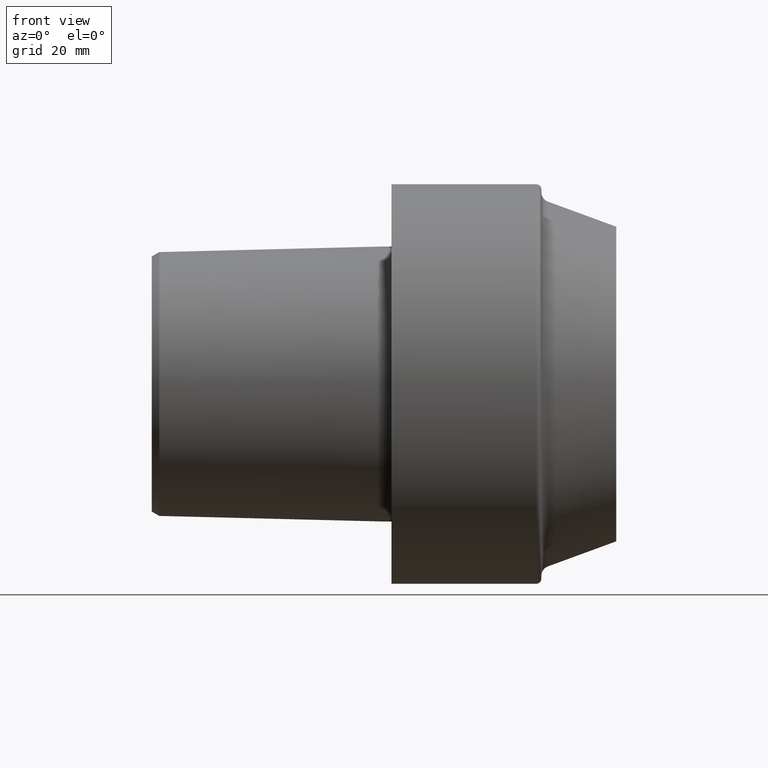
[diagram: clean part render]
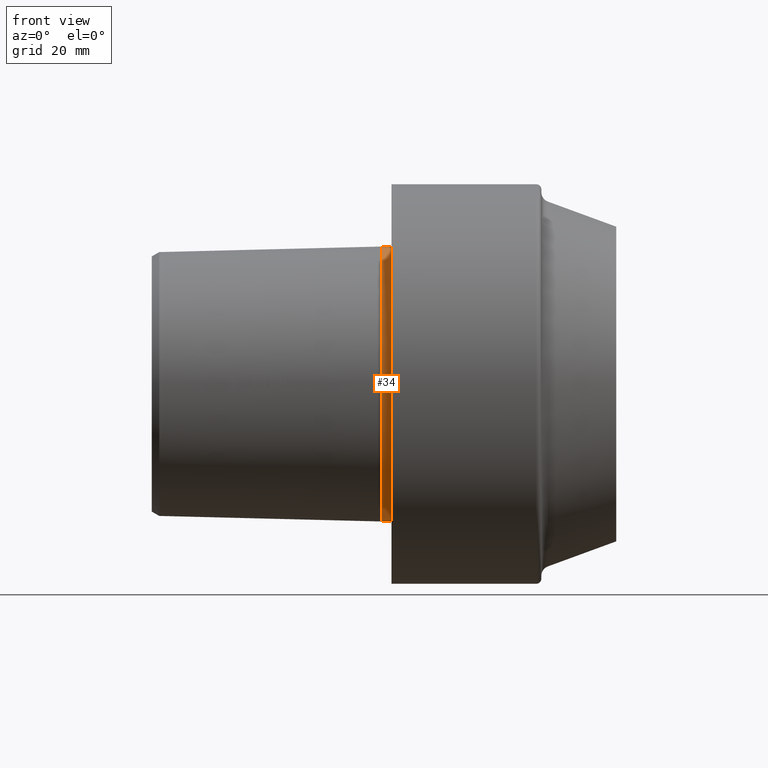
[diagram: same view with one face highlighted and labeled with its STEP entity id]
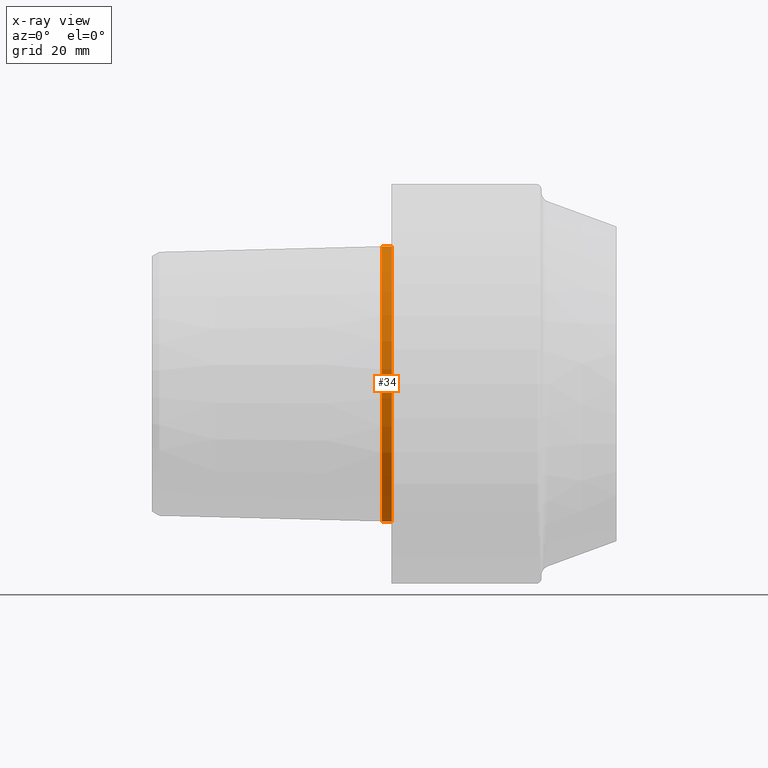
[diagram: x-ray of the same camera — body ghosted, the highlighted face saturated]
A machine part, front view. The second image highlights one B-rep face of the part: STEP entity #34.
The next image is the same camera in x-ray: the body ghosted, the highlighted face saturated — about 0% of this face is hidden behind the body in this view.
In plain terms, the highlighted cylindrical surface (partial cylindrical patch) has radius 27.5265 mm, axis along (-1, 0, 0).
Its self-contained STEP definition (entity closure, byte-faithful):
#4 = VECTOR ( 'NONE', #342, 1000.000000000000000 ) ;
#13 = VERTEX_POINT ( 'NONE', #325 ) ;
#34 = ADVANCED_FACE ( 'NONE', ( #375 ), #241, .T. ) ;
#83 = VECTOR ( 'NONE', #493, 1000.000000000000000 ) ;
#97 = ORIENTED_EDGE ( 'NONE', *, *, #396, .T. ) ;
#107 = CARTESIAN_POINT ( 'NONE',  ( -47.99999995507708661, 0.000000000000000000, 27.52650806658465399 ) ) ;
#174 = AXIS2_PLACEMENT_3D ( 'NONE', #488, #191, #358 ) ;
#179 = ORIENTED_EDGE ( 'NONE', *, *, #194, .F. ) ;
#180 = LINE ( 'NONE', #395, #4 ) ;
#191 = DIRECTION ( 'NONE',  ( -1.000000000000000000, 0.000000000000000000, 0.000000000000000000 ) ) ;
#194 = EDGE_CURVE ( 'NONE', #347, #353, #180, .T. ) ;
#202 = CARTESIAN_POINT ( 'NONE',  ( 2.691416640612785863E-09, 0.000000000000000000, 27.52650806658465399 ) ) ;
#226 = ORIENTED_EDGE ( 'NONE', *, *, #448, .T. ) ;
#237 = CARTESIAN_POINT ( 'NONE',  ( -47.99999995507708661, 0.000000000000000000, 0.000000000000000000 ) ) ;
#241 = CYLINDRICAL_SURFACE ( 'NONE', #334, 27.52650806658465399 ) ;
#312 = ORIENTED_EDGE ( 'NONE', *, *, #354, .F. ) ;
#317 = CARTESIAN_POINT ( 'NONE',  ( 2.691416640612785863E-09, 3.371024999544667893E-15, -27.52650806658465399 ) ) ;
#325 = CARTESIAN_POINT ( 'NONE',  ( -1.940694415329066391, 0.000000000000000000, 27.52650806658465399 ) ) ;
#334 = AXIS2_PLACEMENT_3D ( 'NONE', #237, #420, #538 ) ;
#342 = DIRECTION ( 'NONE',  ( -1.000000000000000000, 0.000000000000000000, 0.000000000000000000 ) ) ;
#347 = VERTEX_POINT ( 'NONE', #317 ) ;
#349 = VERTEX_POINT ( 'NONE', #202 ) ;
#353 = VERTEX_POINT ( 'NONE', #535 ) ;
#354 = EDGE_CURVE ( 'NONE', #353, #13, #424, .T. ) ;
#355 = DIRECTION ( 'NONE',  ( -1.000000000000000000, 0.000000000000000000, 0.000000000000000000 ) ) ;
#358 = DIRECTION ( 'NONE',  ( 0.000000000000000000, 0.000000000000000000, 1.000000000000000000 ) ) ;
#367 = CIRCLE ( 'NONE', #399, 27.52650806658465399 ) ;
#375 = FACE_OUTER_BOUND ( 'NONE', #466, .T. ) ;
#395 = CARTESIAN_POINT ( 'NONE',  ( -47.99999995507708661, 3.371024999544667893E-15, -27.52650806658465399 ) ) ;
#396 = EDGE_CURVE ( 'NONE', #349, #13, #486, .T. ) ;
#399 = AXIS2_PLACEMENT_3D ( 'NONE', #517, #355, #450 ) ;
#420 = DIRECTION ( 'NONE',  ( -1.000000000000000000, 0.000000000000000000, 0.000000000000000000 ) ) ;
#424 = CIRCLE ( 'NONE', #174, 27.52650806658465399 ) ;
#448 = EDGE_CURVE ( 'NONE', #347, #349, #367, .T. ) ;
#450 = DIRECTION ( 'NONE',  ( 0.000000000000000000, 0.000000000000000000, 1.000000000000000000 ) ) ;
#466 = EDGE_LOOP ( 'NONE', ( #179, #226, #97, #312 ) ) ;
#486 = LINE ( 'NONE', #107, #83 ) ;
#488 = CARTESIAN_POINT ( 'NONE',  ( -1.940694415329066391, 0.000000000000000000, 0.000000000000000000 ) ) ;
#493 = DIRECTION ( 'NONE',  ( -1.000000000000000000, 0.000000000000000000, 0.000000000000000000 ) ) ;
#517 = CARTESIAN_POINT ( 'NONE',  ( 2.691416640612785863E-09, 0.000000000000000000, 0.000000000000000000 ) ) ;
#535 = CARTESIAN_POINT ( 'NONE',  ( -1.940694415329066391, 3.371024999544667893E-15, -27.52650806658465399 ) ) ;
#538 = DIRECTION ( 'NONE',  ( 0.000000000000000000, 0.000000000000000000, 1.000000000000000000 ) ) ;